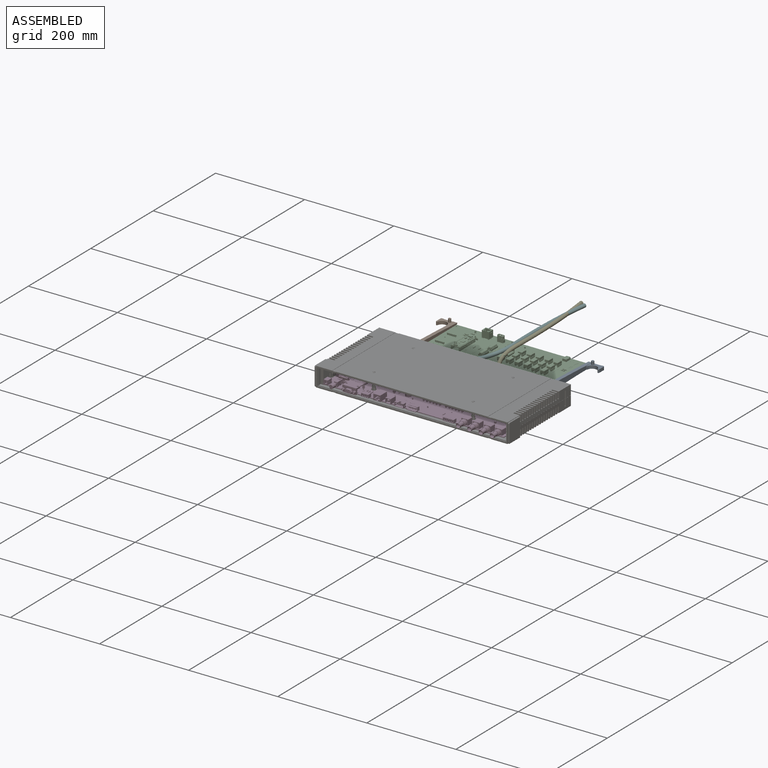
[diagram: assembled view]
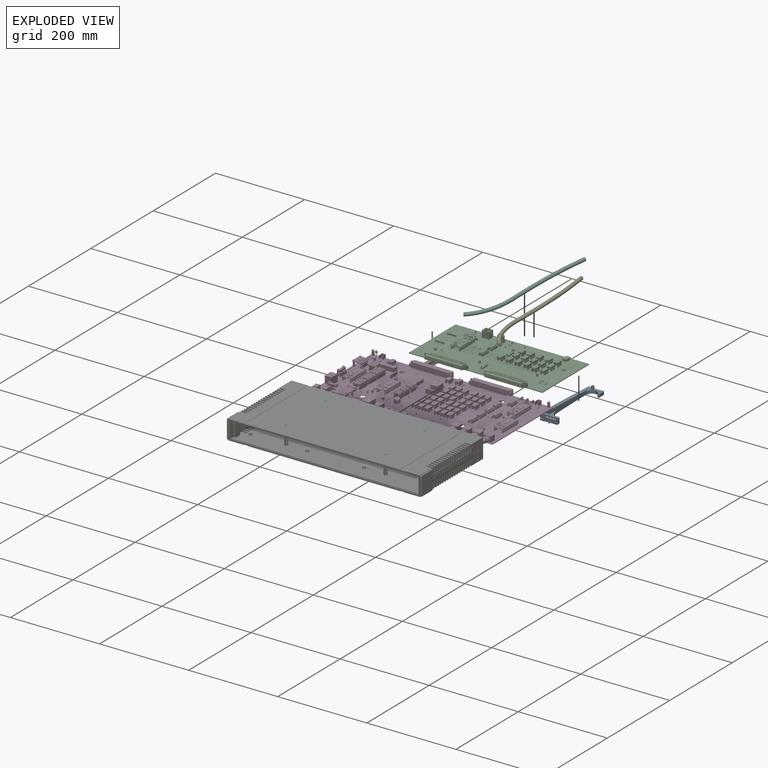
[diagram: exploded view]
GUIDED TOUR — FREECAD ASSEMBLY "InterconnectIO_Box_connector_511-1000"

This assembly has 7 components, labeled P0..P6 below (a component is one placed body or linked part; the same part can appear more than once), held together by 0 modeled joints plus 11 derived contact edges. A joint is a constraint between two components; its type names the relative motion it leaves free:
  CONTACT — a derived adjacency edge — the two components touch in the source model (clearance under 2% of the assembly's diagonal); it is measured from the geometry, not a modeled constraint.
Axis/direction vectors are unit vectors and 'through' points are millimeter coordinates, both in the assembly's world frame.

MATES
  1. CONTACT "contact_0_2": P0 <-> P2, contact direction (0.000, 0.000, 1.000) through (364.03, -15.01, -3.80) mm (derived from contact, not a modeled constraint)
  2. CONTACT "contact_0_3": P0 <-> P3, contact direction (0.000, -1.000, 0.000) through (385.89, -25.50, -4.22) mm (derived from contact, not a modeled constraint)
  3. CONTACT "contact_0_6": P0 <-> P6, contact direction (0.000, -1.000, 0.000) through (385.93, -18.39, -9.70) mm (derived from contact, not a modeled constraint)
  4. CONTACT "contact_1_2": P1 <-> P2, contact direction (0.000, 0.000, 1.000) through (71.92, 89.48, 1.33) mm (derived from contact, not a modeled constraint)
  5. CONTACT "contact_1_3": P1 <-> P3, contact direction (0.000, -1.000, 0.000) through (44.18, -25.83, -7.34) mm (derived from contact, not a modeled constraint)
  6. CONTACT "contact_1_6": P1 <-> P6, contact direction (0.000, -1.000, 0.000) through (44.17, -18.49, -9.95) mm (derived from contact, not a modeled constraint)
  7. CONTACT "contact_2_3": P2 <-> P3, contact direction (0.000, -1.000, 0.000) through (276.30, -21.81, 3.25) mm (derived from contact, not a modeled constraint)
  8. CONTACT "contact_2_4": P2 <-> P4, contact direction (0.000, 0.000, 1.000) through (225.64, 55.93, -1.65) mm (derived from contact, not a modeled constraint)
  9. CONTACT "contact_2_5": P2 <-> P5, contact direction (0.000, 0.000, 1.000) through (181.28, 12.76, -2.87) mm (derived from contact, not a modeled constraint)
  10. CONTACT "contact_3_6": P3 <-> P6, contact direction (0.000, 0.000, 1.000) through (405.74, -55.59, -3.91) mm (derived from contact, not a modeled constraint)
  11. CONTACT "contact_4_5": P4 <-> P5, contact direction (-1.000, 0.000, 0.000) through (212.88, 217.41, 3.88) mm (derived from contact, not a modeled constraint)

ASSEMBLY ORDER
  1. P3 — the base component [order heuristic]
  2. P6 — core [order heuristic]
  3. P5 [order verified]
  4. P2 [order verified]
  5. P4 [order verified]
  6. P1 [order verified]
  7. P0 [order verified]
(P4 verified with a relaxed clearance tolerance: the source model stores slight part interference there.)
Order-tag legend:
  [order verified] — this step's position reverses a verified removal order: the component was checked to insert without passing through the ones already placed.
  [order heuristic] — the first 2 components form the assembly's core: parts whose collision-free extraction could not be verified, listed in mate-graph order.

Of the 7 components, 4 carry a construction recipe — the FreeCAD feature program (sketches with constraints, then the solid features that consume them) that regenerates the part from scratch, quoted from this document or from the linked companion document it references; the rest are supplied as boundary geometry only. The tour below walks the components in assembly order: each is shown spotlighted twice — in the assembled view, then in the exploded view, where a leader line traces a displaced component back to its assembled socket (components that stay in place when exploded have no leader line; saturated green if recipe-attached, orange if geometry-only; every other component desaturated gray) — followed by its recipe or geometry summary and the mates that hold it.
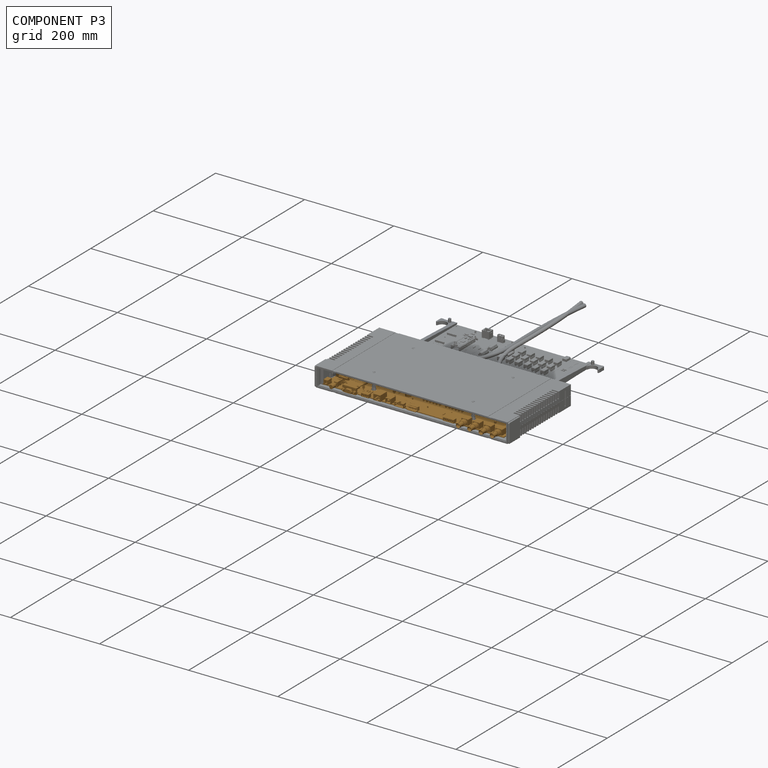
[diagram: component P3 — assembled]
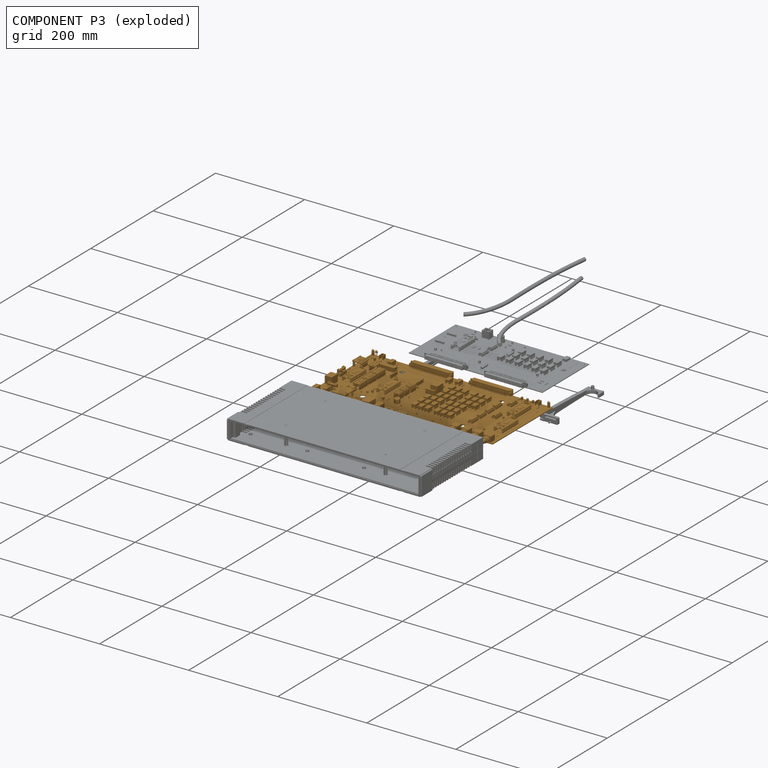
[diagram: component P3 — exploded]
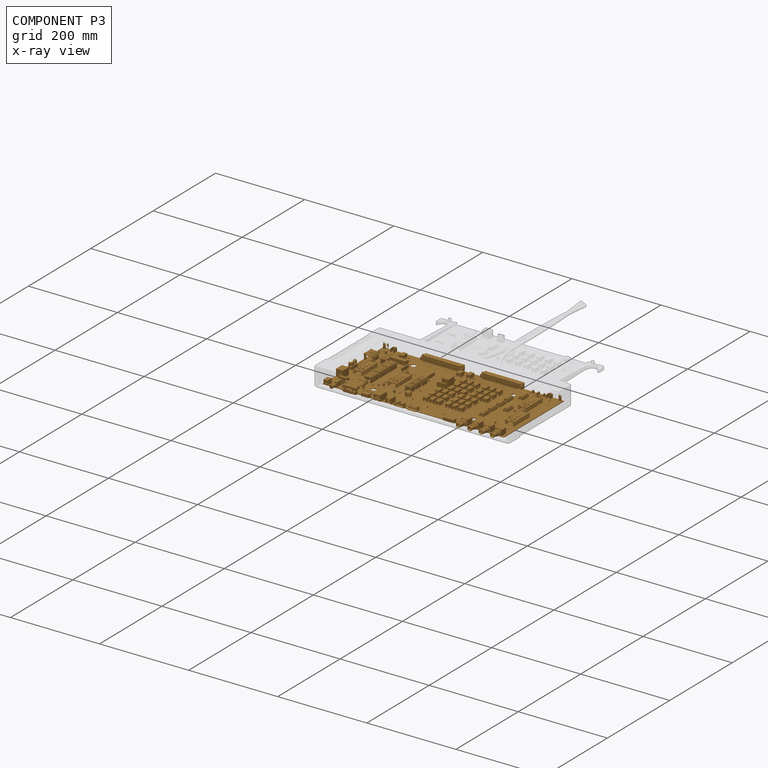
[diagram: component P3 — x-ray view]
COMPONENT P3 — geometry summary ("InterconnectIO"; no construction recipe available for this part):
  bounding box: 406.4 x 221.1 x 22.9 mm
  tessellated surface: 597,776 triangles
  volume: 244619 mm^3 (12% of its bounding box)
Held by: resting contact with P0 (derived edge); resting contact with P1 (derived edge); resting contact with P2 (derived edge); resting contact with P6 (derived edge).
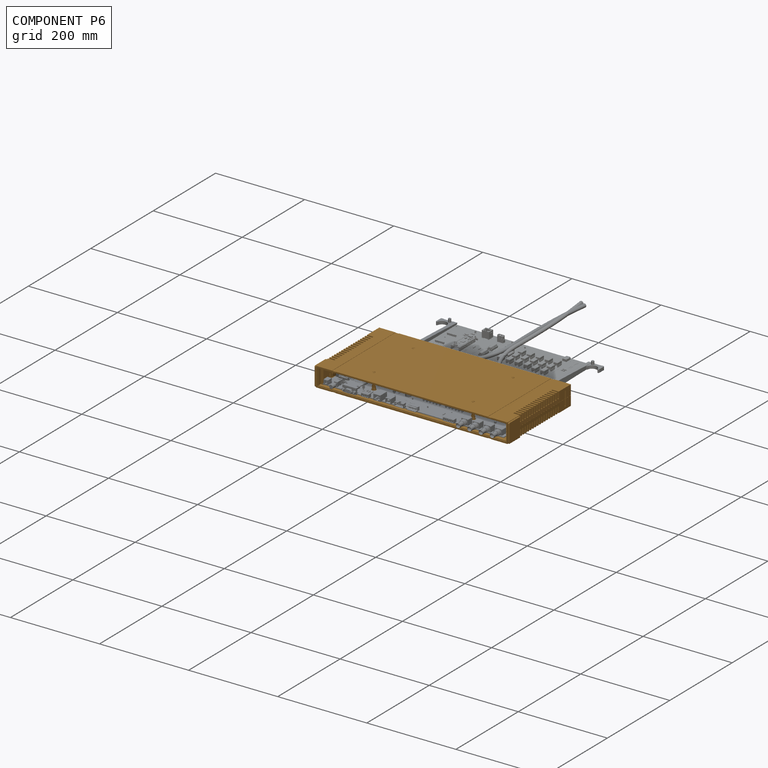
[diagram: component P6 — assembled]
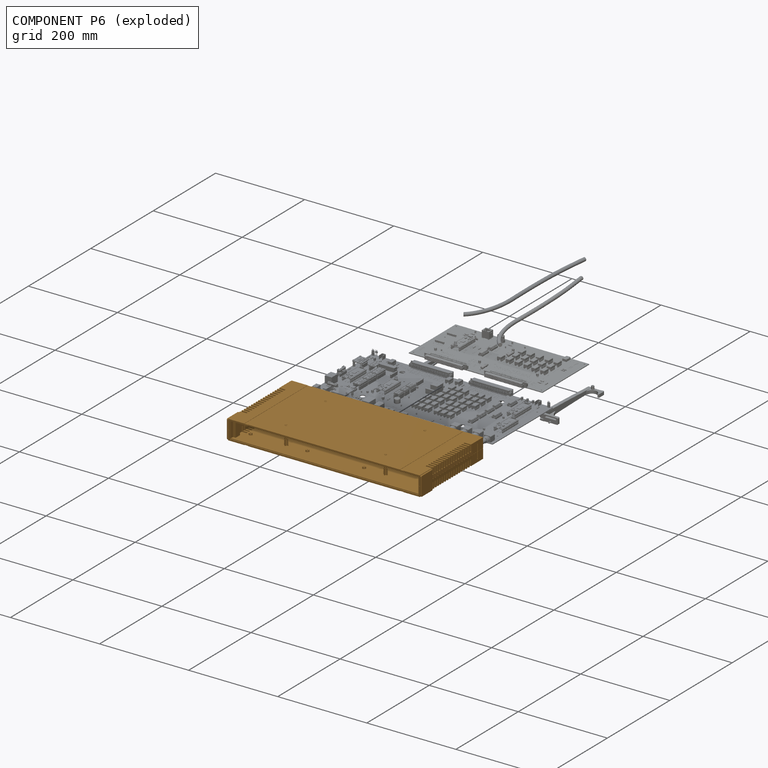
[diagram: component P6 — exploded]
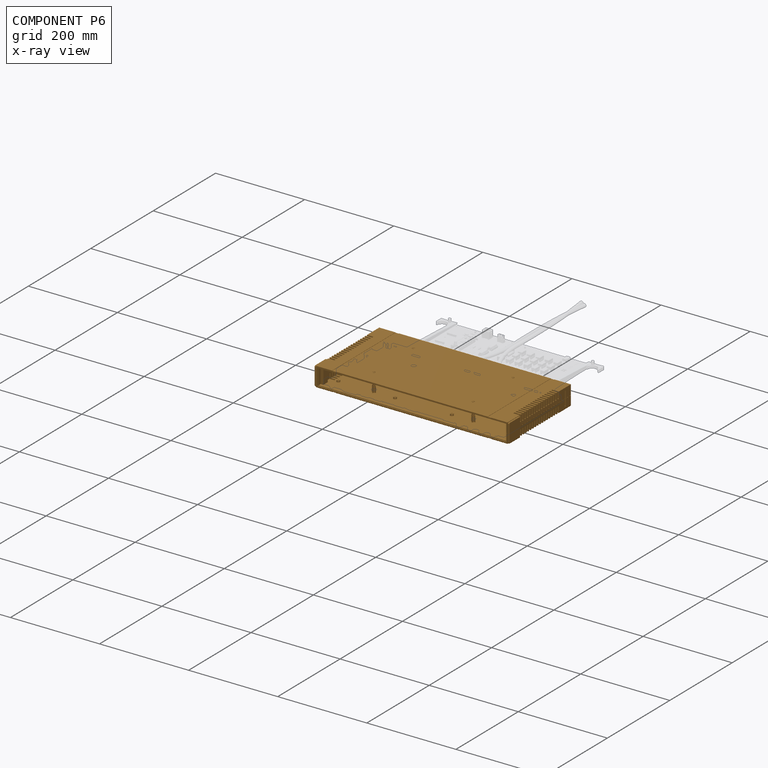
[diagram: component P6 — x-ray view]
COMPONENT P6 — geometry summary ("PRM-14460 (DESKTOP)"; no construction recipe available for this part):
  bounding box: 437.1 x 203.2 x 43.7 mm
  tessellated surface: 19,064 triangles
  volume: 617798 mm^3 (16% of its bounding box)
  symmetry: 2-fold rotationally symmetric about the x axis; 2-fold rotationally symmetric about the y axis; 2-fold rotationally symmetric about the z axis; mirror-symmetric across its x mid-plane, y mid-plane, z mid-plane
Held by: resting contact with P0 (derived edge); resting contact with P1 (derived edge); resting contact with P3 (derived edge).
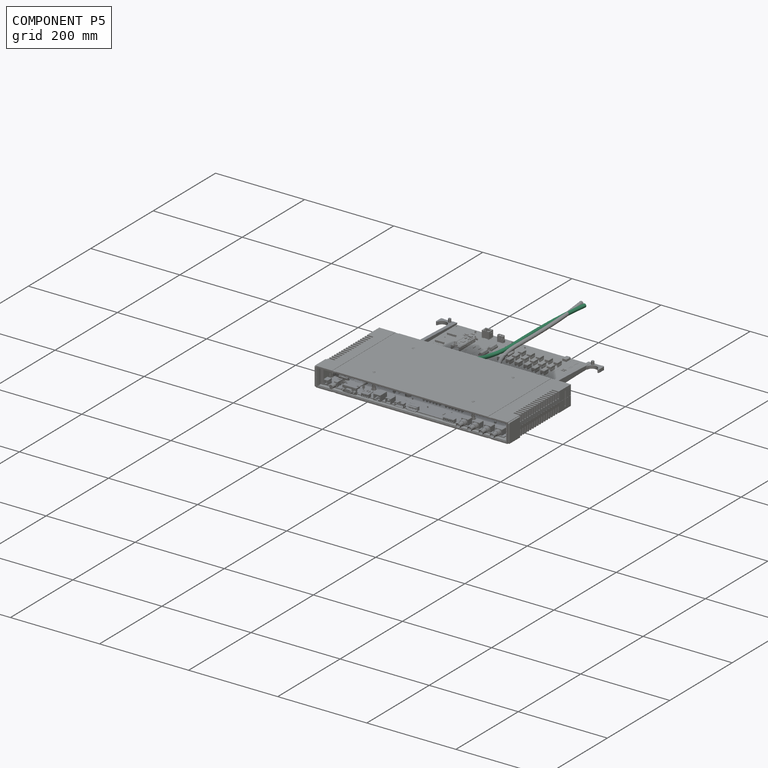
[diagram: component P5 — assembled]
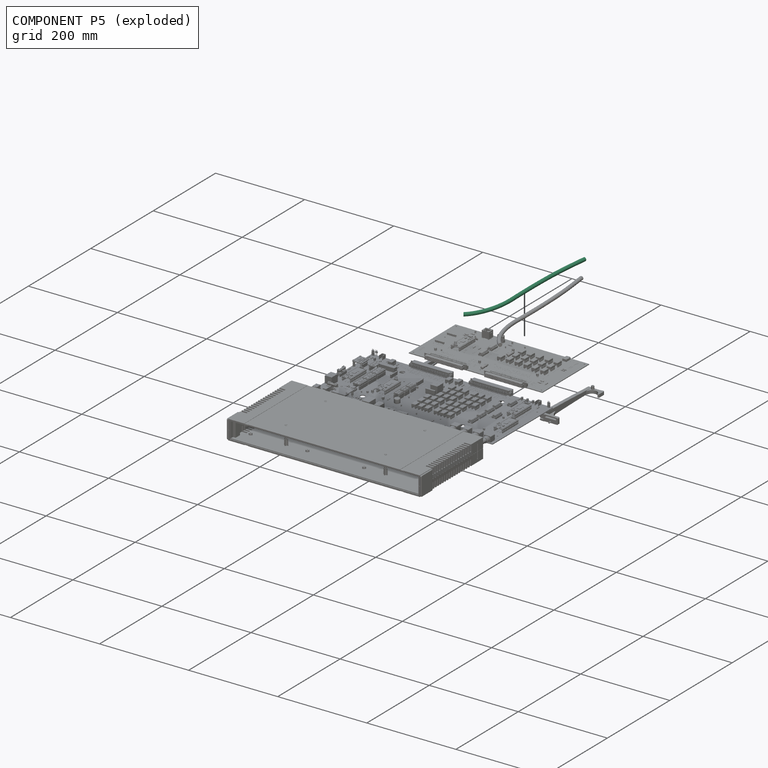
[diagram: component P5 — exploded]
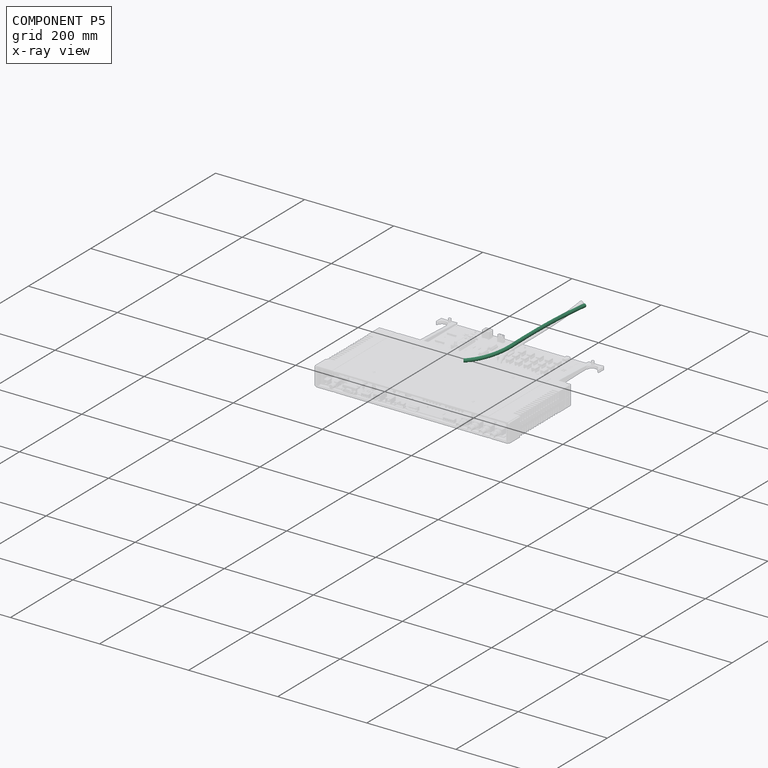
[diagram: component P5 — x-ray view]
COMPONENT P5 — recipe-attached ("Harness001", modeled in this document).
Held by: resting contact with P2 (derived edge); resting contact with P4 (derived edge).
Construction recipe (the document's own serialized feature program — sketch geometry with constraints, then the solid features built on it; lengths are millimeters unless a unit is written):

FEATURE [Sketcher::SketchObject] Sketch029
  ArcFitTolerance = 1e-06
  AttachmentSupport = -> [XZ_Plane132]
  FullyConstrained = false
  MakeInternals = false
  MapMode = 5
  Placement = pos=(0,0,0) rot=(1,0,0;1.5708rad)
  sketch-geometry (16):
    g0-g3: Circle [constr] x4 (B-spline internal-alignment scaffolding for g4; pole/knot coordinates omitted)
    g4: BSplineCurve PolesCount=4 KnotsCount=2 Degree=3 IsPeriodic=0
    g5: GeomPoint [constr] X=0 Y=0 Z=0
    g6: GeomPoint [constr] X=35.7127 Y=101.675 Z=0
    g7-g11: Circle [constr] x5 (B-spline internal-alignment scaffolding for g12; pole/knot coordinates omitted)
    g12: BSplineCurve PolesCount=5 KnotsCount=3 Degree=3 IsPeriodic=0
    g13: GeomPoint [constr] X=0 Y=0 Z=0
    g14: GeomPoint [constr] X=-6.14883 Y=-196.312 Z=0
    g15: GeomPoint [constr] X=-9.14809 Y=-222.641 Z=0
  constraints (16):
    c: Weight(g0) = 1
    c: Equal(g0,g1)
    c: Equal(g0,g2)
    c: Equal(g0,g3)
    c: InternalAlignment(g0-g3 -> g4) x4
    c: InternalAlignment(g5,g4)
    c: InternalAlignment(g6,g4)
    c: Coincident(g0,g-1)
    c: PointOnObject(g1,g-2)
    c: Coincident(g3,g2)
    c: Weight(g7) = 1
    c: Equal(g7, g8-g11) x4
    c: InternalAlignment(g7-g11 -> g12) x5
    c: InternalAlignment(g13,g12)
    c: InternalAlignment(g14,g12)
    c: InternalAlignment(g15,g12)
FEATURE [Sketcher::SketchObject] Sketch030
  ArcFitTolerance = 1e-06
  AttachmentSupport = -> [XY_Plane131]
  FullyConstrained = false
  MakeInternals = false
  MapMode = 5
  sketch-geometry (1):
    g0: Circle CenterX=0 CenterY=0 CenterZ=0 NormalX=0 NormalY=0 NormalZ=1 AngleXU=0 Radius=4
  constraints (1):
    c: Diameter(g0) = 8
FEATURE [PartDesign::AdditivePipe] AdditivePipe001
  AuxilleryCurvelinear = true
  AuxillerySpineTangent = false
  Binormal = (0,0,0)
  Mode = 0
  Profile = -> Sketch030
  Spine = -> Sketch029
  SpineTangent = false
  Suppressed = false
  Transformation = 0
  Transition = 0
FEATURE [PartDesign::Body] Body015  label="Harness001"
  AllowCompound = false
  Group = -> [Sketch030,Sketch029,AdditivePipe001]
  Origin = -> Origin131
  Placement = pos=(209.228,106.572,2.164) rot=(0,-0.707107,0.707107;3.14159rad)
  Tip = -> AdditivePipe001
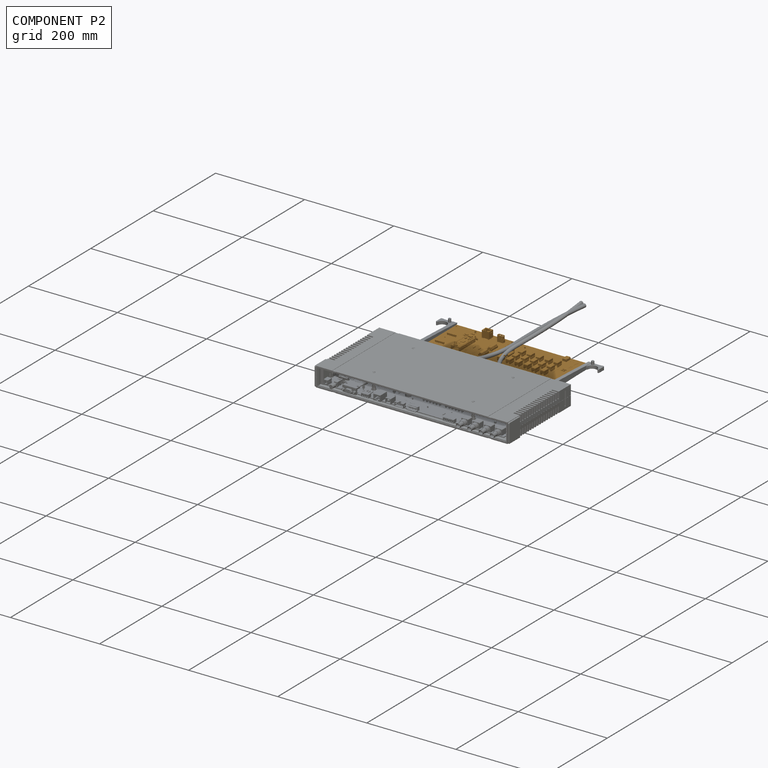
[diagram: component P2 — assembled]
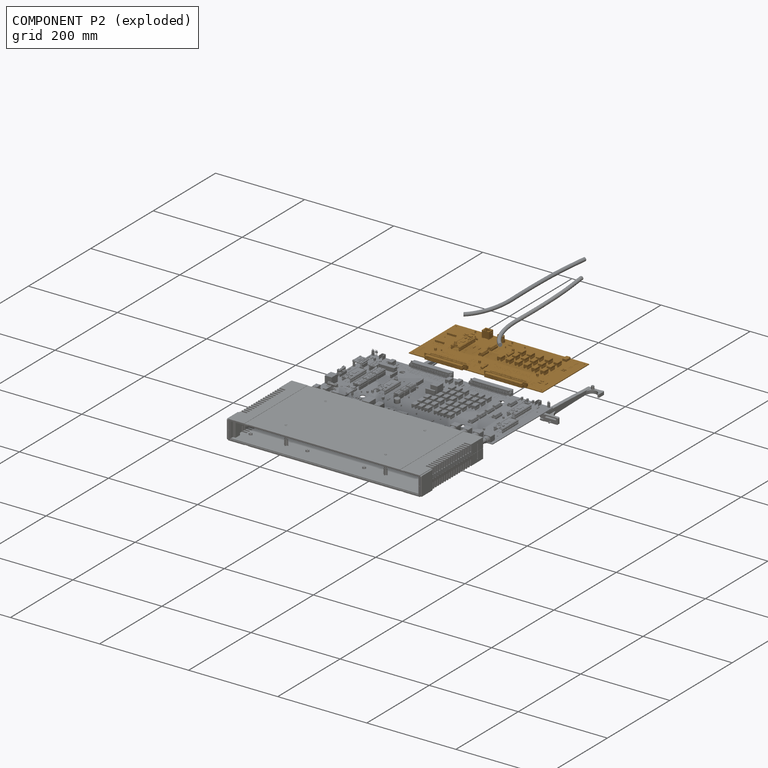
[diagram: component P2 — exploded]
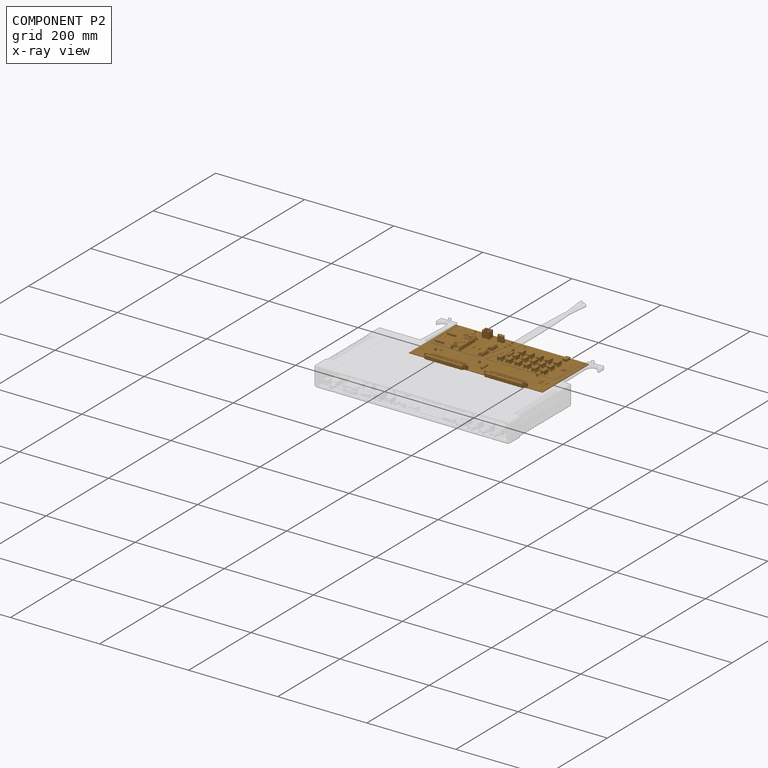
[diagram: component P2 — x-ray view]
COMPONENT P2 — geometry summary ("selftest_bd"; no construction recipe available for this part):
  bounding box: 300.0 x 157.6 x 21.9 mm
  tessellated surface: 243,138 triangles
  volume: 107416 mm^3 (10% of its bounding box)
Held by: resting contact with P0 (derived edge); resting contact with P1 (derived edge); resting contact with P3 (derived edge); resting contact with P4 (derived edge); resting contact with P5 (derived edge).
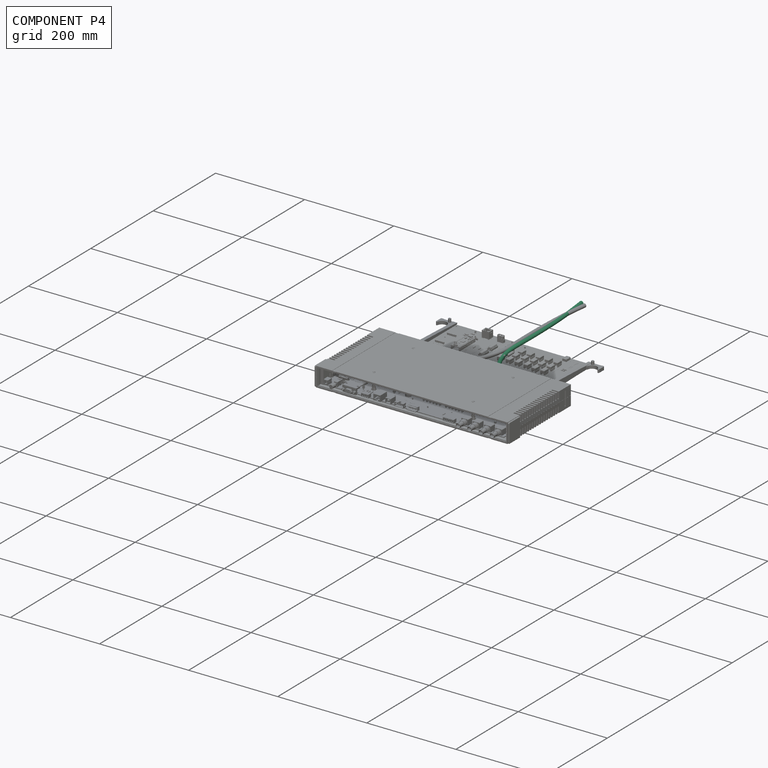
[diagram: component P4 — assembled]
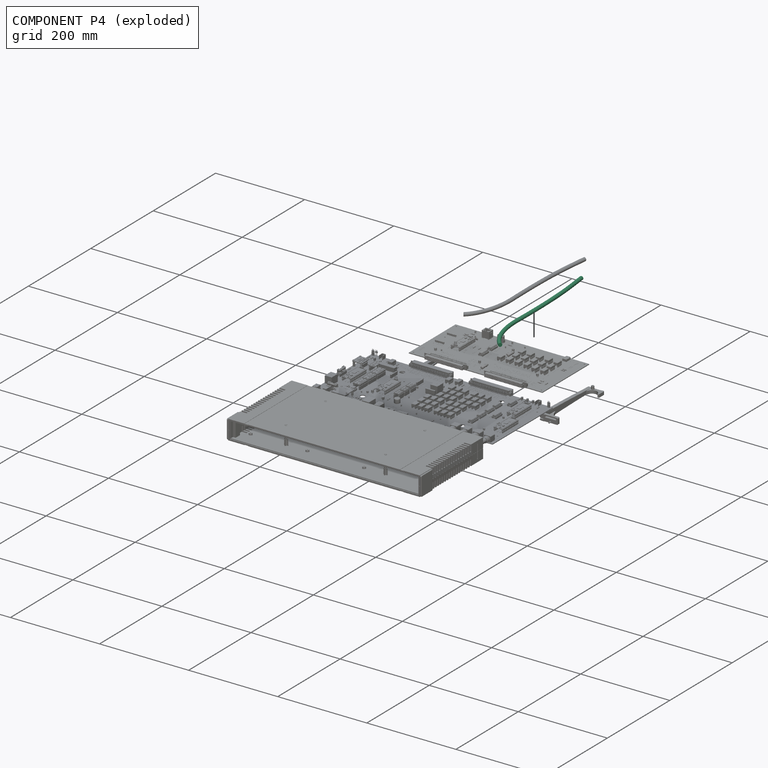
[diagram: component P4 — exploded]
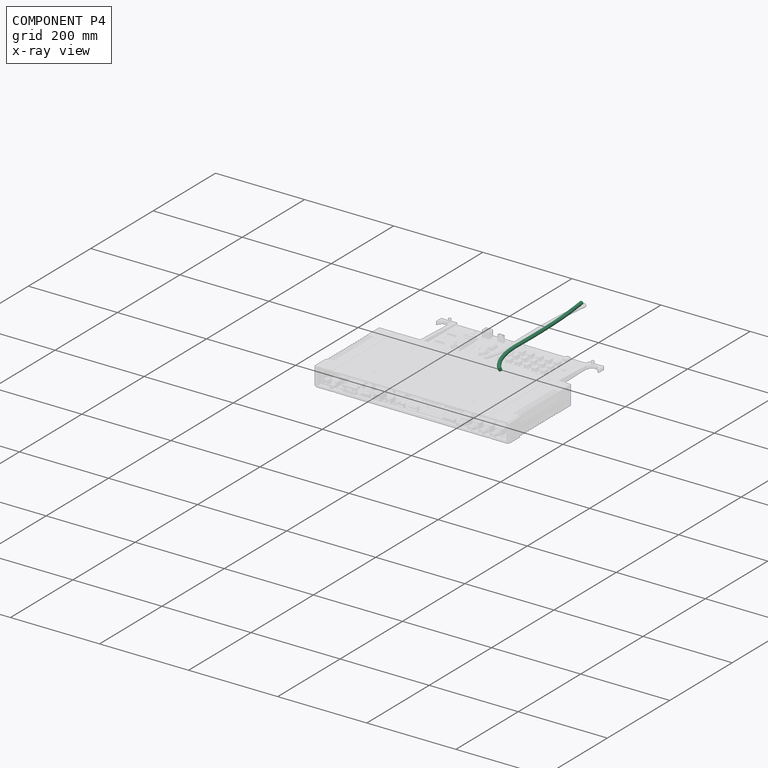
[diagram: component P4 — x-ray view]
COMPONENT P4 — recipe-attached ("Harness", modeled in this document).
Held by: resting contact with P2 (derived edge); resting contact with P5 (derived edge).
Construction recipe (the document's own serialized feature program — sketch geometry with constraints, then the solid features built on it; lengths are millimeters unless a unit is written):

FEATURE [Sketcher::SketchObject] Sketch028
  ArcFitTolerance = 1e-06
  AttachmentSupport = -> [XY_Plane130]
  FullyConstrained = false
  MakeInternals = false
  MapMode = 5
  sketch-geometry (1):
    g0: Circle CenterX=0 CenterY=0 CenterZ=0 NormalX=0 NormalY=0 NormalZ=1 AngleXU=0 Radius=4
  constraints (1):
    c: Diameter(g0) = 8
FEATURE [Sketcher::SketchObject] Sketch001
  ArcFitTolerance = 1e-06
  AttachmentSupport = -> [XZ_Plane131]
  FullyConstrained = false
  MakeInternals = false
  MapMode = 5
  Placement = pos=(0,0,0) rot=(1,0,0;1.5708rad)
  sketch-geometry (16):
    g0-g3: Circle [constr] x4 (B-spline internal-alignment scaffolding for g4; pole/knot coordinates omitted)
    g4: BSplineCurve PolesCount=4 KnotsCount=2 Degree=3 IsPeriodic=0
    g5: GeomPoint [constr] X=0 Y=0 Z=0
    g6: GeomPoint [constr] X=35.7127 Y=101.675 Z=0
    g7-g11: Circle [constr] x5 (B-spline internal-alignment scaffolding for g12; pole/knot coordinates omitted)
    g12: BSplineCurve PolesCount=5 KnotsCount=3 Degree=3 IsPeriodic=0
    g13: GeomPoint [constr] X=0 Y=0 Z=0
    g14: GeomPoint [constr] X=-6.14883 Y=-196.312 Z=0
    g15: GeomPoint [constr] X=-9.14809 Y=-222.641 Z=0
  constraints (16):
    c: Weight(g0) = 1
    c: Equal(g0,g1)
    c: Equal(g0,g2)
    c: Equal(g0,g3)
    c: InternalAlignment(g0-g3 -> g4) x4
    c: InternalAlignment(g5,g4)
    c: InternalAlignment(g6,g4)
    c: Coincident(g0,g-1)
    c: PointOnObject(g1,g-2)
    c: Coincident(g3,g2)
    c: Weight(g7) = 1
    c: Equal(g7, g8-g11) x4
    c: InternalAlignment(g7-g11 -> g12) x5
    c: InternalAlignment(g13,g12)
    c: InternalAlignment(g14,g12)
    c: InternalAlignment(g15,g12)
FEATURE [PartDesign::AdditivePipe] AdditivePipe
  AuxilleryCurvelinear = true
  AuxillerySpineTangent = false
  Binormal = (0,0,0)
  Mode = 0
  Profile = -> Sketch028
  Spine = -> Sketch001
  SpineTangent = false
  Suppressed = false
  Transformation = 0
  Transition = 0
FEATURE [PartDesign::Body] Body014  label="Harness"
  AllowCompound = false
  Group = -> [Sketch028,Sketch001,AdditivePipe]
  Origin = -> Origin130
  Placement = pos=(216.343,112.196,2.164) rot=(1,0,0;1.5708rad)
  Tip = -> AdditivePipe
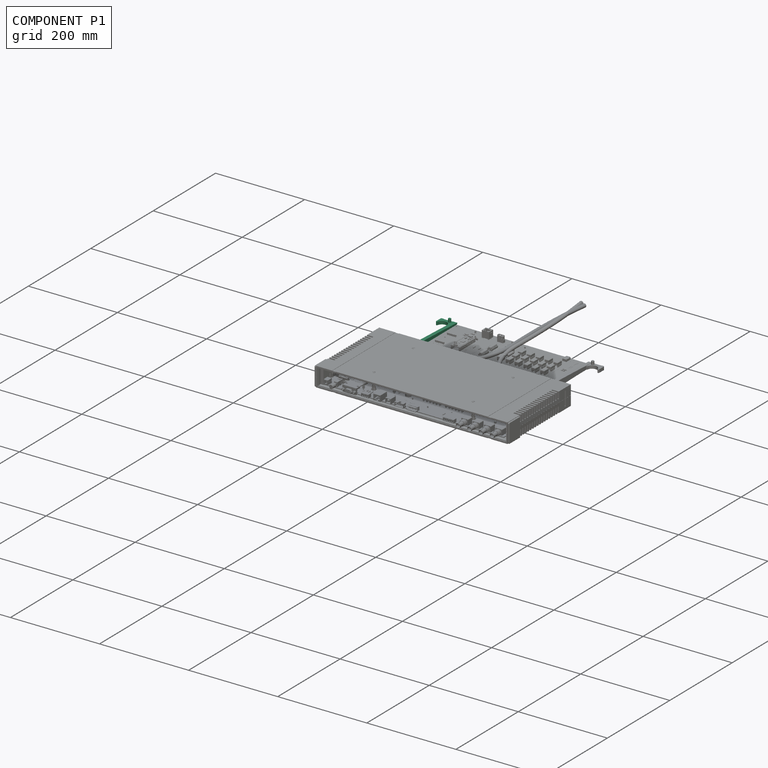
[diagram: component P1 — assembled]
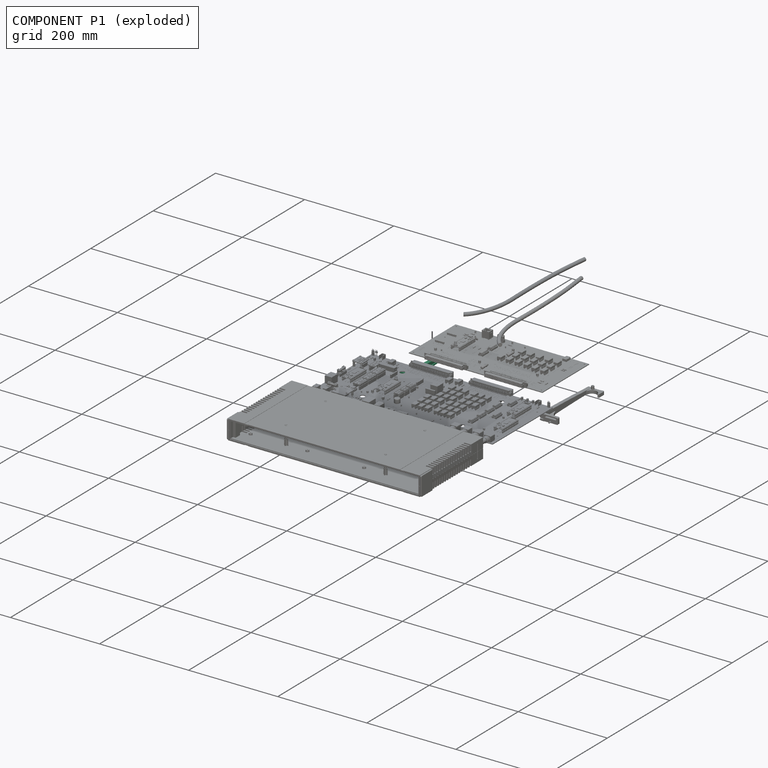
[diagram: component P1 — exploded]
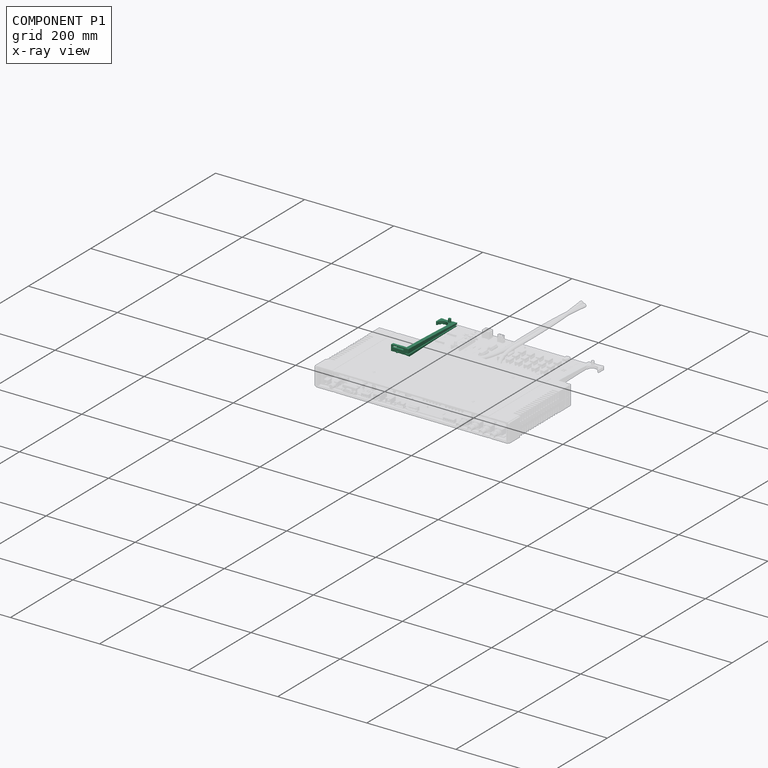
[diagram: component P1 — x-ray view]
COMPONENT P1 — recipe-attached ("rail_right", modeled in this document).
Held by: resting contact with P2 (derived edge); resting contact with P3 (derived edge); resting contact with P6 (derived edge).
Construction recipe (the document's own serialized feature program — sketch geometry with constraints, then the solid features built on it; lengths are millimeters unless a unit is written):

FEATURE [Sketcher::SketchObject] Sketch021
  ArcFitTolerance = 0
  AttachmentOffset = pos=(0,0,3) rot=(0,0,1;0rad)
  AttachmentSupport = -> [XY_Plane125]
  FullyConstrained = true
  MakeInternals = false
  MapMode = 5
  Placement = pos=(0,0,3) rot=(0,0,1;0rad)
  sketch-geometry (4):
    g0: LineSegment StartX=-2.36 StartY=2.5 StartZ=0 EndX=2.36 EndY=2.5 EndZ=0
    g1: LineSegment StartX=2.36 StartY=2.5 StartZ=0 EndX=2.36 EndY=156 EndZ=0
    g2: LineSegment StartX=2.36 StartY=156 StartZ=0 EndX=-2.36 EndY=156 EndZ=0
    g3: LineSegment StartX=-2.36 StartY=156 StartZ=0 EndX=-2.36 EndY=2.5 EndZ=0
  constraints (12):
    c: Coincident(g0,g1)
    c: Coincident(g1,g2)
    c: Coincident(g2,g3)
    c: Coincident(g3,g0)
    c: Horizontal(g0)
    c: Horizontal(g2)
    c: Vertical(g1)
    c: Vertical(g3)
    c: DistanceX(g2,g2) = 4.72
    c: DistanceY(g0,g-1) = -2.5
    c: DistanceX(g0,g-1) = 2.36
    c: DistanceY(g1,g1) = 153.5
FEATURE [Sketcher::SketchObject] Sketch022
  ArcFitTolerance = 0
  AttachmentSupport = -> [XY_Plane125]
  FullyConstrained = true
  MakeInternals = false
  MapMode = 5
  sketch-geometry (8):
    g0: LineSegment StartX=-1 StartY=0 StartZ=0 EndX=-1 EndY=153 EndZ=0
    g1: ArcOfCircle CenterX=-7.01053 CenterY=152.083 CenterZ=0 NormalX=0 NormalY=0 NormalZ=1 AngleXU=0 Radius=6.08 StartAngle=0.151318 EndAngle=0.699927
    g2: LineSegment StartX=-2.36 StartY=156 StartZ=0 EndX=-2.86 EndY=156 EndZ=0
    g3: ArcOfCircle CenterX=-3459.01 CenterY=157.297 CenterZ=0 NormalX=0 NormalY=0 NormalZ=1 AngleXU=0 Radius=3456.16 StartAngle=6.24055 EndAngle=6.28281
    g4: LineSegment StartX=-4 StartY=0 StartZ=0 EndX=-4 EndY=2.5 EndZ=0
    g5: LineSegment StartX=-4 StartY=2.5 StartZ=0 EndX=-6 EndY=2.5 EndZ=0
    g6: LineSegment StartX=-4 StartY=0 StartZ=0 EndX=-1 EndY=0 EndZ=0
    g7: LineSegment StartX=-6 StartY=10 StartZ=0 EndX=-6 EndY=2.5 EndZ=0
  constraints (27):
    c: Vertical(g0)
    c: Coincident(g1,g0)
    c: Coincident(g2,g1)
    c: Horizontal(g2)
    c: Coincident(g3,g2)
    c: DistanceX(g2,g2) = 0.5
    c: Diameter(g3) = 6912.31
    c: PointOnObject(g6,g-1)
    c: Vertical(g4)
    c: Coincident(g5,g4)
    c: Horizontal(g5)
    c: Coincident(g6,g4)
    c: Coincident(g7,g3)
    c: Coincident(g7,g5)
    c: DistanceX(g6,g6) = 3
    c: Vertical(g7)
    c: DistanceX(g5,g5) = 2
    c: DistanceY(g7,g7) = 7.5
    c: DistanceY(g4,g4) = 2.5
    c: DistanceY(g4,g-1) = 0
    c: DistanceY(g3,g2) = 146
    c: DistanceY(g0,g0) = 153
    c: DistanceX(g0,g-1) = 1
    c: DistanceX(g6,g-1) = 1
    c: DistanceY(g6,g0) = 0
    c: Radius(g1) = 6.08
    c: DistanceX(g1,g0) = 1.36
FEATURE [PartDesign::Pad] Pad008
  Direction = (0,0,1)
  Length = 8
  Length2 = 10
  Profile = -> Sketch022
  ReferenceAxis = -> Sketch022 [N_Axis]
  Suppressed = false
  Type = 0
FEATURE [PartDesign::Pad] Pad009
  BaseFeature = -> Pad008
  Direction = (0,0,1)
  Length = 5
  Length2 = 10
  Profile = -> Sketch021
  ReferenceAxis = -> Sketch021 [N_Axis]
  Suppressed = false
  Type = 0
FEATURE [Sketcher::SketchObject] Sketch023
  ArcFitTolerance = 0
  AttachmentSupport = -> [XY_Plane125]
  FullyConstrained = true
  MakeInternals = false
  MapMode = 5
  sketch-geometry (6):
    g0: LineSegment StartX=1 StartY=0 StartZ=0 EndX=10 EndY=0 EndZ=0
    g1: LineSegment StartX=4.36 StartY=156 StartZ=0 EndX=2.36 EndY=156 EndZ=0
    g2: LineSegment StartX=1 StartY=153 StartZ=0 EndX=1 EndY=0 EndZ=0
    g3: ArcOfCircle CenterX=7.01053 CenterY=152.083 CenterZ=0 NormalX=0 NormalY=0 NormalZ=1 AngleXU=0 Radius=6.08 StartAngle=2.44167 EndAngle=2.99027
    g4: LineSegment StartX=10 StartY=0 StartZ=0 EndX=10 EndY=10.5 EndZ=0
    g5: ArcOfCircle CenterX=-6386.74 CenterY=-164.597 CenterZ=0 NormalX=0 NormalY=0 NormalZ=1 AngleXU=0 Radius=6399.14 StartAngle=0.027366 EndAngle=0.050121
  constraints (20):
    c: Coincident(g2,g0)
    c: Horizontal(g0)
    c: Horizontal(g1)
    c: Vertical(g2)
    c: PointOnObject(g0,g-1)
    c: Coincident(g1,g3)
    c: Coincident(g2,g3)
    c: DistanceX(g2,g1) = 1.36
    c: DistanceY(g2,g1) = 3
    c: DistanceX(g1,g1) = 2
    c: DistanceX(g-1,g0) = 1
    c: DistanceY(g2,g2) = 153
    c: Radius(g3) = 6.08
    c: Coincident(g4,g0)
    c: DistanceY(g4,g4) = 10.5
    c: Coincident(g5,g4)
    c: Coincident(g5,g1)
    c: Radius(g5) = 6399.14
    c: DistanceX(g0,g0) = 9
    c: DistanceX(g-1,g4) = 10
FEATURE [PartDesign::Pad] Pad010
  BaseFeature = -> Pad009
  Direction = (0,0,1)
  Length = 8
  Length2 = 10
  Profile = -> Sketch023
  ReferenceAxis = -> Sketch023 [N_Axis]
  Suppressed = false
  Type = 0
FEATURE [PartDesign::Body] Body010  label="rail001"
  AllowCompound = false
  Group = -> [Sketch022,Pad008,Sketch021,Pad009,Sketch023,Pad010]
  Origin = -> Origin125
  Tip = -> Pad010
FEATURE [Sketcher::SketchObject] Sketch025
  ArcFitTolerance = 0
  AttachmentSupport = -> [YZ_Plane126]
  FullyConstrained = false
  MakeInternals = false
  MapMode = 5
  Placement = pos=(0,0,0) rot=(0.57735,0.57735,0.57735;2.0944rad)
  sketch-geometry (5):
    g0: LineSegment StartX=6.01175 StartY=0 StartZ=0 EndX=36.0118 EndY=0 EndZ=0
    g1: LineSegment StartX=36.0118 StartY=0 StartZ=0 EndX=36.0118 EndY=-2 EndZ=0
    g2: LineSegment StartX=8.01175 StartY=-30 StartZ=0 EndX=6.01175 EndY=-30 EndZ=0
    g3: LineSegment StartX=6.01175 StartY=-30 StartZ=0 EndX=6.01175 EndY=0 EndZ=0
    g4: ArcOfCircle CenterX=42.4201 CenterY=-36.4083 CenterZ=0 NormalX=0 NormalY=0 NormalZ=1 AngleXU=0 Radius=35 StartAngle=1.75493 EndAngle=2.95746
  constraints (14):
    c: Coincident(g0,g1)
    c: Coincident(g2,g3)
    c: Coincident(g3,g0)
    c: Horizontal(g0)
    c: Horizontal(g2)
    c: Vertical(g1)
    c: Vertical(g3)
    c: PointOnObject(g0,g-1)
    c: DistanceX(g0,g0) = 30
    c: Coincident(g1,g4)
    c: Coincident(g2,g4)
    c: DistanceY(g1,g1) = 2
    c: DistanceX(g2,g2) = 2
    c: Radius(g4) = 35
FEATURE [PartDesign::Pad] Pad012
  Direction = (1,0,0)
  Length = 6
  Length2 = 10
  Placement = pos=(0,0,0) rot=(0.57735,0.57735,0.57735;2.0944rad)
  Profile = -> Sketch025
  ReferenceAxis = -> Sketch025 [N_Axis]
  Suppressed = false
  Type = 0
FEATURE [PartDesign::Fillet] Fillet002
  Base = -> Pad012 [Edge5]
  BaseFeature = -> Pad012
  Placement = pos=(0,0,0) rot=(0.57735,0.57735,0.57735;2.0944rad)
  Radius = 2
  SupportTransform = false
  Suppressed = false
  UseAllEdges = false
FEATURE [PartDesign::Fillet] Fillet003
  Base = -> Fillet002 [Edge17]
  BaseFeature = -> Fillet002
  Placement = pos=(0,0,0) rot=(0.57735,0.57735,0.57735;2.0944rad)
  Radius = 2
  SupportTransform = false
  Suppressed = false
  UseAllEdges = false
FEATURE [PartDesign::Body] Body011  label="sideforce001"
  AllowCompound = false
  Group = -> [Sketch025,Pad012,Fillet002,Fillet003]
  Origin = -> Origin126
  Placement = pos=(2,0,8) rot=(0,1,0;3.14159rad)
  Tip = -> Fillet003
FEATURE [Sketcher::SketchObject] Sketch026
  ArcFitTolerance = 0
  AttachmentSupport = -> [YZ_Plane127]
  FullyConstrained = false
  MakeInternals = false
  MapMode = 5
  Placement = pos=(0,0,0) rot=(0.57735,-0.57735,-0.57735;2.0944rad)
  sketch-geometry (10):
    g0: LineSegment StartX=-156.003 StartY=8.00103 StartZ=0 EndX=-137.423 EndY=8.00103 EndZ=0
    g1: LineSegment StartX=-137.423 StartY=8.00103 StartZ=0 EndX=-137.423 EndY=8.88796 EndZ=0
    g2: LineSegment StartX=-139.803 StartY=35.8702 StartZ=0 EndX=-153.603 EndY=35.8702 EndZ=0
    g3: ArcOfCircle CenterX=-136.888 CenterY=21.0784 CenterZ=0 NormalX=0 NormalY=0 NormalZ=1 AngleXU=0 Radius=11.34 StartAngle=1.74764 EndAngle=4.59202
    g4: ArcOfCircle CenterX=-153.603 CenterY=33.4702 CenterZ=0 NormalX=0 NormalY=0 NormalZ=1 AngleXU=0 Radius=2.4 StartAngle=1.5708 EndAngle=3.27078
    g5: ArcOfCircle CenterX=-139.803 CenterY=33.4702 CenterZ=0 NormalX=0 NormalY=0 NormalZ=1 AngleXU=0 Radius=2.4 StartAngle=0.566257 EndAngle=1.5708
    g6: ArcOfCircle CenterX=-230.704 CenterY=20.6405 CenterZ=0 NormalX=0 NormalY=0 NormalZ=1 AngleXU=0 Radius=75.763 StartAngle=6.11557 EndAngle=6.44921
    g7: Circle CenterX=-150.473 CenterY=13.3301 CenterZ=0 NormalX=0 NormalY=0 NormalZ=1 AngleXU=0 Radius=3
    g8: ArcOfCircle CenterX=-138.362 CenterY=8.88796 CenterZ=0 NormalX=0 NormalY=0 NormalZ=1 AngleXU=0 Radius=0.939281 StartAngle=0 EndAngle=1.45042
    g9: ArcOfCircle CenterX=-139.174 CenterY=33.8702 CenterZ=0 NormalX=0 NormalY=0 NormalZ=1 AngleXU=0 Radius=1.65446 StartAngle=4.88923 EndAngle=6.84944
  constraints (20):
    c: Coincident(g0,g1)
    c: Horizontal(g0)
    c: Horizontal(g2)
    c: Vertical(g1)
    c: Tangent(g2,g4) = -1.5708
    c: Tangent(g2,g5) = -1.5708
    c: Radius(g4) = 2.4
    c: Radius(g5) = 2.4
    c: DistanceX(g2,g2) = 13.8
    c: DistanceY(g0,g4) = 25.16
    c: DistanceX(g4,g2) = 2.38
    c: Radius(g3) = 11.34
    c: Coincident(g6,g0)
    c: Coincident(g6,g4)
    c: DistanceX(g0,g0) = 18.58
    c: Diameter(g7) = 6
    c: Tangent(g3,g8) = 1.5708
    c: Tangent(g1,g8) = -1.5708
    c: Tangent(g3,g9) = 1.5708
    c: Tangent(g5,g9) = -1.5708
FEATURE [PartDesign::Pad] Pad013
  Direction = (-1,0,0)
  Length = 7
  Length2 = 10
  Placement = pos=(0,0,0) rot=(0.57735,0.57735,0.57735;2.0944rad)
  Profile = -> Sketch026
  ReferenceAxis = -> Sketch026 [N_Axis]
  Suppressed = false
  Type = 0
FEATURE [PartDesign::Body] Body012  label="finger001"
  AllowCompound = false
  Group = -> [Sketch026,Pad013]
  Origin = -> Origin127
  Placement = pos=(4.278,-0.01,-0.012) rot=(0,0,1;0rad)
  Tip = -> Pad013
FEATURE [Sketcher::SketchObject] Sketch027
  ArcFitTolerance = 0
  AttachmentSupport = -> [XZ_Plane129]
  FullyConstrained = true
  MakeInternals = false
  MapMode = 5
  Placement = pos=(0,0,0) rot=(1,0,0;1.5708rad)
  sketch-geometry (4):
    g0: ArcOfCircle CenterX=5.9 CenterY=35 CenterZ=0 NormalX=0 NormalY=0 NormalZ=1 AngleXU=0 Radius=3 StartAngle=4e-16 EndAngle=3.14159
    g1: ArcOfCircle CenterX=5.9 CenterY=13 CenterZ=0 NormalX=0 NormalY=0 NormalZ=1 AngleXU=0 Radius=3 StartAngle=3.14159 EndAngle=6.28319
    g2: LineSegment StartX=2.9 StartY=35 StartZ=0 EndX=2.9 EndY=13 EndZ=0
    g3: LineSegment StartX=8.9 StartY=13 StartZ=0 EndX=8.9 EndY=35 EndZ=0
  constraints (10):
    c: Tangent(g0,g2) = -1.5708
    c: Tangent(g2,g1) = -1.5708
    c: Tangent(g1,g3) = -1.5708
    c: Tangent(g3,g0) = -1.5708
    c: Equal(g0,g1)
    c: Vertical(g2)
    c: DistanceY(g1,g0) = 22
    c: DistanceX(g1,g1) = 6
    c: DistanceY(g-1,g1) = 13
    c: DistanceX(g-1,g1) = 5.9
FEATURE [PartDesign::Pad] Pad014
  Direction = (0,-1,2e-16)
  Length = 2
  Length2 = 10
  Placement = pos=(0,0,0) rot=(1,0,0;1.5708rad)
  Profile = -> Sketch027
  ReferenceAxis = -> Sketch027 [N_Axis]
  Suppressed = false
  Type = 0
FEATURE [PartDesign::Body] Body013  label="slotscrew001"
  AllowCompound = false
  Group = -> [Sketch027,Pad014]
  Origin = -> Origin128
  Placement = pos=(-0.013,-4.05,-39.977) rot=(0,0,1;0rad)
  Tip = -> Pad014
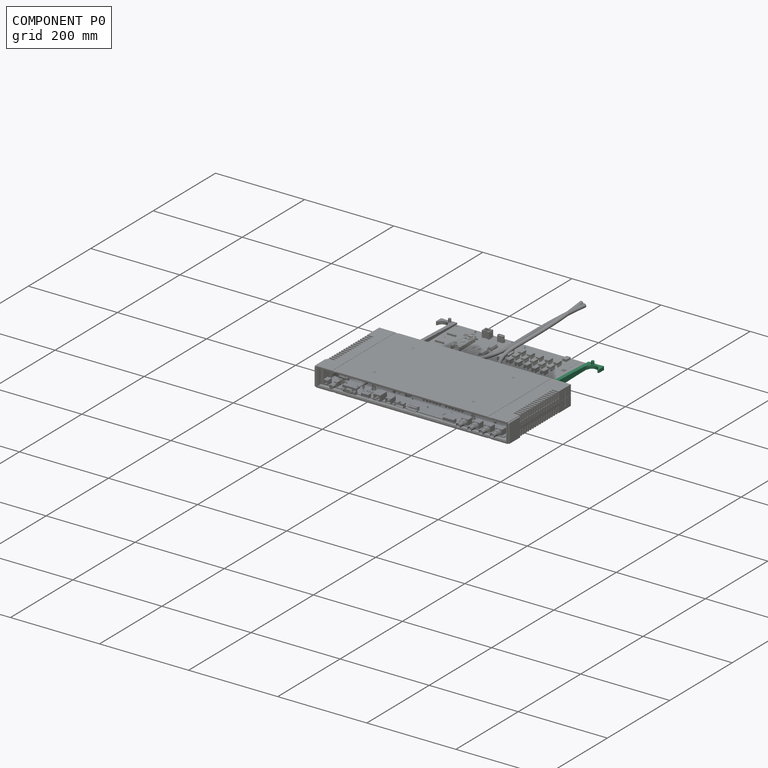
[diagram: component P0 — assembled]
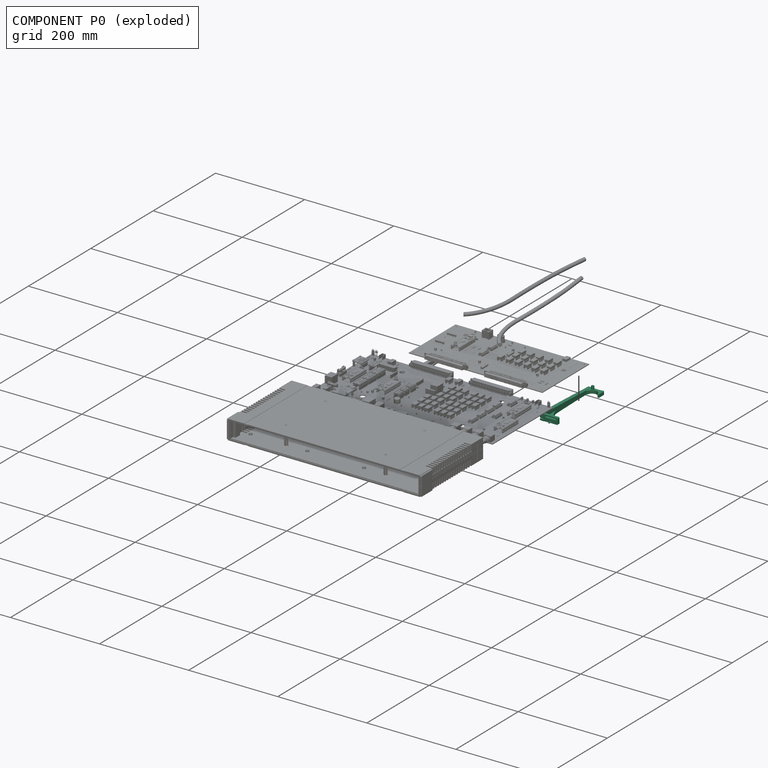
[diagram: component P0 — exploded]
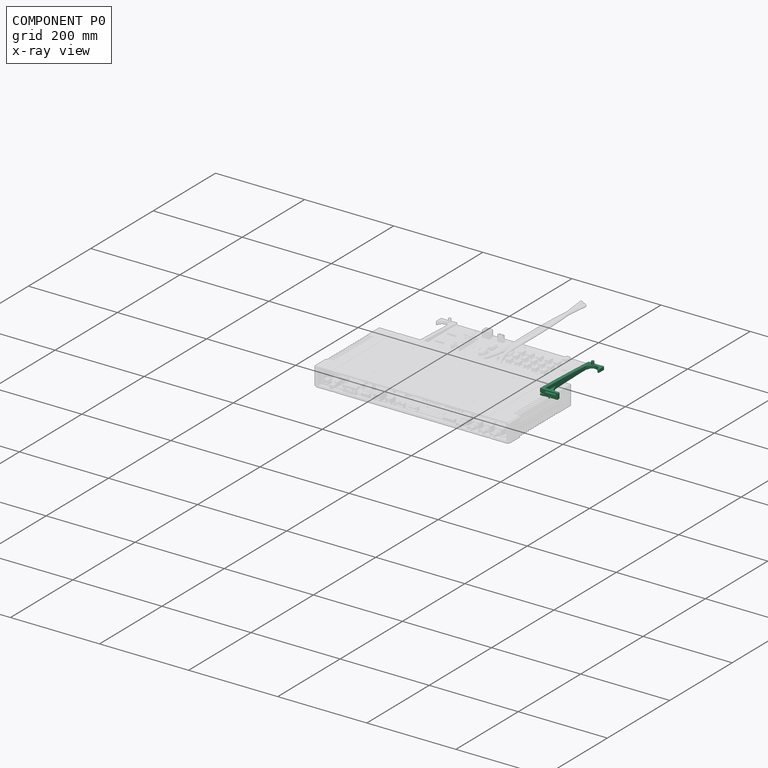
[diagram: component P0 — x-ray view]
COMPONENT P0 — recipe-attached ("rail_left", modeled in this document).
Held by: resting contact with P2 (derived edge); resting contact with P3 (derived edge); resting contact with P6 (derived edge).
Construction recipe (the document's own serialized feature program — sketch geometry with constraints, then the solid features built on it; lengths are millimeters unless a unit is written):

FEATURE [PartDesign::Body] Body  label="slot"
  AllowCompound = false
  Origin = -> Origin119
  Placement = pos=(0,6.008,0) rot=(0,0,1;0rad)
FEATURE [Sketcher::SketchObject] Sketch
  ArcFitTolerance = 0
  AttachmentSupport = -> [XY_Plane120]
  FullyConstrained = true
  MakeInternals = false
  MapMode = 5
  sketch-geometry (4):
    g0: LineSegment StartX=-2.36 StartY=2.5 StartZ=0 EndX=2.36 EndY=2.5 EndZ=0
    g1: LineSegment StartX=2.36 StartY=2.5 StartZ=0 EndX=2.36 EndY=156 EndZ=0
    g2: LineSegment StartX=2.36 StartY=156 StartZ=0 EndX=-2.36 EndY=156 EndZ=0
    g3: LineSegment StartX=-2.36 StartY=156 StartZ=0 EndX=-2.36 EndY=2.5 EndZ=0
  constraints (12):
    c: Coincident(g0,g1)
    c: Coincident(g1,g2)
    c: Coincident(g2,g3)
    c: Coincident(g3,g0)
    c: Horizontal(g0)
    c: Horizontal(g2)
    c: Vertical(g1)
    c: Vertical(g3)
    c: DistanceX(g2,g2) = 4.72
    c: DistanceY(g0,g-1) = -2.5
    c: DistanceX(g0,g-1) = 2.36
    c: DistanceY(g1,g1) = 153.5
FEATURE [Sketcher::SketchObject] Sketch003
  ArcFitTolerance = 0
  AttachmentSupport = -> [XY_Plane120]
  FullyConstrained = true
  MakeInternals = false
  MapMode = 5
  sketch-geometry (8):
    g0: LineSegment StartX=-1 StartY=0 StartZ=0 EndX=-1 EndY=153 EndZ=0
    g1: ArcOfCircle CenterX=-7.01053 CenterY=152.083 CenterZ=0 NormalX=0 NormalY=0 NormalZ=1 AngleXU=0 Radius=6.08 StartAngle=0.151318 EndAngle=0.699927
    g2: LineSegment StartX=-2.36 StartY=156 StartZ=0 EndX=-2.86 EndY=156 EndZ=0
    g3: ArcOfCircle CenterX=-3459.01 CenterY=157.297 CenterZ=0 NormalX=0 NormalY=0 NormalZ=1 AngleXU=0 Radius=3456.16 StartAngle=6.24055 EndAngle=6.28281
    g4: LineSegment StartX=-4 StartY=0 StartZ=0 EndX=-4 EndY=2.5 EndZ=0
    g5: LineSegment StartX=-4 StartY=2.5 StartZ=0 EndX=-6 EndY=2.5 EndZ=0
    g6: LineSegment StartX=-4 StartY=0 StartZ=0 EndX=-1 EndY=0 EndZ=0
    g7: LineSegment StartX=-6 StartY=10 StartZ=0 EndX=-6 EndY=2.5 EndZ=0
  constraints (27):
    c: Vertical(g0)
    c: Coincident(g1,g0)
    c: Coincident(g2,g1)
    c: Horizontal(g2)
    c: Coincident(g3,g2)
    c: DistanceX(g2,g2) = 0.5
    c: Diameter(g3) = 6912.31
    c: PointOnObject(g6,g-1)
    c: Vertical(g4)
    c: Coincident(g5,g4)
    c: Horizontal(g5)
    c: Coincident(g6,g4)
    c: Coincident(g7,g3)
    c: Coincident(g7,g5)
    c: DistanceX(g6,g6) = 3
    c: Vertical(g7)
    c: DistanceX(g5,g5) = 2
    c: DistanceY(g7,g7) = 7.5
    c: DistanceY(g4,g4) = 2.5
    c: DistanceY(g4,g-1) = 0
    c: DistanceY(g3,g2) = 146
    c: DistanceY(g0,g0) = 153
    c: DistanceX(g0,g-1) = 1
    c: DistanceX(g6,g-1) = 1
    c: DistanceY(g6,g0) = 0
    c: Radius(g1) = 6.08
    c: DistanceX(g1,g0) = 1.36
FEATURE [PartDesign::Pad] Pad
  Direction = (0,0,1)
  Length = 8
  Length2 = 10
  Profile = -> Sketch003
  ReferenceAxis = -> Sketch003 [N_Axis]
  Suppressed = false
  Type = 0
FEATURE [PartDesign::Pad] Pad001
  BaseFeature = -> Pad
  Direction = (0,0,1)
  Length = 5
  Length2 = 10
  Profile = -> Sketch
  ReferenceAxis = -> Sketch [N_Axis]
  Suppressed = false
  Type = 0
FEATURE [Sketcher::SketchObject] Sketch011
  ArcFitTolerance = 0
  AttachmentSupport = -> [XY_Plane120]
  FullyConstrained = true
  MakeInternals = false
  MapMode = 5
  sketch-geometry (6):
    g0: LineSegment StartX=1 StartY=0 StartZ=0 EndX=10 EndY=0 EndZ=0
    g1: LineSegment StartX=4.36 StartY=156 StartZ=0 EndX=2.36 EndY=156 EndZ=0
    g2: LineSegment StartX=1 StartY=153 StartZ=0 EndX=1 EndY=0 EndZ=0
    g3: ArcOfCircle CenterX=7.01053 CenterY=152.083 CenterZ=0 NormalX=0 NormalY=0 NormalZ=1 AngleXU=0 Radius=6.08 StartAngle=2.44167 EndAngle=2.99027
    g4: LineSegment StartX=10 StartY=0 StartZ=0 EndX=10 EndY=10.5 EndZ=0
    g5: ArcOfCircle CenterX=-6386.74 CenterY=-164.597 CenterZ=0 NormalX=0 NormalY=0 NormalZ=1 AngleXU=0 Radius=6399.14 StartAngle=0.027366 EndAngle=0.050121
  constraints (20):
    c: Coincident(g2,g0)
    c: Horizontal(g0)
    c: Horizontal(g1)
    c: Vertical(g2)
    c: PointOnObject(g0,g-1)
    c: Coincident(g1,g3)
    c: Coincident(g2,g3)
    c: DistanceX(g2,g1) = 1.36
    c: DistanceY(g2,g1) = 3
    c: DistanceX(g1,g1) = 2
    c: DistanceX(g-1,g0) = 1
    c: DistanceY(g2,g2) = 153
    c: Radius(g3) = 6.08
    c: Coincident(g4,g0)
    c: DistanceY(g4,g4) = 10.5
    c: Coincident(g5,g4)
    c: Coincident(g5,g1)
    c: Radius(g5) = 6399.14
    c: DistanceX(g0,g0) = 9
    c: DistanceX(g-1,g4) = 10
FEATURE [PartDesign::Pad] Pad003
  BaseFeature = -> Pad001
  Direction = (0,0,1)
  Length = 8
  Length2 = 10
  Profile = -> Sketch011
  ReferenceAxis = -> Sketch011 [N_Axis]
  Suppressed = false
  Type = 0
FEATURE [PartDesign::Body] Body003  label="rail"
  AllowCompound = false
  Group = -> [Sketch003,Pad,Sketch,Pad001,Sketch011,Pad003]
  Origin = -> Origin120
  Tip = -> Pad003
FEATURE [Sketcher::SketchObject] Sketch013
  ArcFitTolerance = 0
  AttachmentSupport = -> [YZ_Plane121]
  FullyConstrained = false
  MakeInternals = false
  MapMode = 5
  Placement = pos=(0,0,0) rot=(0.57735,0.57735,0.57735;2.0944rad)
  sketch-geometry (5):
    g0: LineSegment StartX=6.01175 StartY=0 StartZ=0 EndX=36.0118 EndY=0 EndZ=0
    g1: LineSegment StartX=36.0118 StartY=0 StartZ=0 EndX=36.0118 EndY=-2 EndZ=0
    g2: LineSegment StartX=8.01175 StartY=-30 StartZ=0 EndX=6.01175 EndY=-30 EndZ=0
    g3: LineSegment StartX=6.01175 StartY=-30 StartZ=0 EndX=6.01175 EndY=0 EndZ=0
    g4: ArcOfCircle CenterX=42.4201 CenterY=-36.4083 CenterZ=0 NormalX=0 NormalY=0 NormalZ=1 AngleXU=0 Radius=35 StartAngle=1.75493 EndAngle=2.95746
  constraints (14):
    c: Coincident(g0,g1)
    c: Coincident(g2,g3)
    c: Coincident(g3,g0)
    c: Horizontal(g0)
    c: Horizontal(g2)
    c: Vertical(g1)
    c: Vertical(g3)
    c: PointOnObject(g0,g-1)
    c: DistanceX(g0,g0) = 30
    c: Coincident(g1,g4)
    c: Coincident(g2,g4)
    c: DistanceY(g1,g1) = 2
    c: DistanceX(g2,g2) = 2
    c: Radius(g4) = 35
FEATURE [PartDesign::Pad] Pad005
  Direction = (1,0,0)
  Length = 6
  Length2 = 10
  Placement = pos=(0,0,0) rot=(0.57735,0.57735,0.57735;2.0944rad)
  Profile = -> Sketch013
  ReferenceAxis = -> Sketch013 [N_Axis]
  Suppressed = false
  Type = 0
FEATURE [PartDesign::Fillet] Fillet
  Base = -> Pad005 [Edge5]
  BaseFeature = -> Pad005
  Placement = pos=(0,0,0) rot=(0.57735,0.57735,0.57735;2.0944rad)
  Radius = 2
  SupportTransform = false
  Suppressed = false
  UseAllEdges = false
FEATURE [PartDesign::Fillet] Fillet001
  Base = -> Fillet [Edge17]
  BaseFeature = -> Fillet
  Placement = pos=(0,0,0) rot=(0.57735,0.57735,0.57735;2.0944rad)
  Radius = 2
  SupportTransform = false
  Suppressed = false
  UseAllEdges = false
FEATURE [PartDesign::Body] Body004  label="sideforce"
  AllowCompound = false
  Group = -> [Sketch013,Pad005,Fillet,Fillet001]
  Origin = -> Origin121
  Placement = pos=(-4.016,0.057,0) rot=(0,0,1;0rad)
  Tip = -> Fillet001
FEATURE [Sketcher::SketchObject] Sketch019
  ArcFitTolerance = 0
  AttachmentSupport = -> [YZ_Plane122]
  FullyConstrained = false
  MakeInternals = false
  MapMode = 5
  Placement = pos=(0,0,0) rot=(0.57735,-0.57735,-0.57735;2.0944rad)
  sketch-geometry (10):
    g0: LineSegment StartX=-156.003 StartY=8.00103 StartZ=0 EndX=-137.423 EndY=8.00103 EndZ=0
    g1: LineSegment StartX=-137.423 StartY=8.00103 StartZ=0 EndX=-137.423 EndY=8.88796 EndZ=0
    g2: LineSegment StartX=-139.803 StartY=35.8702 StartZ=0 EndX=-153.603 EndY=35.8702 EndZ=0
    g3: ArcOfCircle CenterX=-136.888 CenterY=21.0784 CenterZ=0 NormalX=0 NormalY=0 NormalZ=1 AngleXU=0 Radius=11.34 StartAngle=1.74764 EndAngle=4.59202
    g4: ArcOfCircle CenterX=-153.603 CenterY=33.4702 CenterZ=0 NormalX=0 NormalY=0 NormalZ=1 AngleXU=0 Radius=2.4 StartAngle=1.5708 EndAngle=3.27078
    g5: ArcOfCircle CenterX=-139.803 CenterY=33.4702 CenterZ=0 NormalX=0 NormalY=0 NormalZ=1 AngleXU=0 Radius=2.4 StartAngle=0.566257 EndAngle=1.5708
    g6: ArcOfCircle CenterX=-230.704 CenterY=20.6405 CenterZ=0 NormalX=0 NormalY=0 NormalZ=1 AngleXU=0 Radius=75.763 StartAngle=6.11557 EndAngle=6.44921
    g7: Circle CenterX=-150.473 CenterY=13.3301 CenterZ=0 NormalX=0 NormalY=0 NormalZ=1 AngleXU=0 Radius=3
    g8: ArcOfCircle CenterX=-138.362 CenterY=8.88796 CenterZ=0 NormalX=0 NormalY=0 NormalZ=1 AngleXU=0 Radius=0.939281 StartAngle=0 EndAngle=1.45042
    g9: ArcOfCircle CenterX=-139.174 CenterY=33.8702 CenterZ=0 NormalX=0 NormalY=0 NormalZ=1 AngleXU=0 Radius=1.65446 StartAngle=4.88923 EndAngle=6.84944
  constraints (20):
    c: Coincident(g0,g1)
    c: Horizontal(g0)
    c: Horizontal(g2)
    c: Vertical(g1)
    c: Tangent(g2,g4) = -1.5708
    c: Tangent(g2,g5) = -1.5708
    c: Radius(g4) = 2.4
    c: Radius(g5) = 2.4
    c: DistanceX(g2,g2) = 13.8
    c: DistanceY(g0,g4) = 25.16
    c: DistanceX(g4,g2) = 2.38
    c: Radius(g3) = 11.34
    c: Coincident(g6,g0)
    c: Coincident(g6,g4)
    c: DistanceX(g0,g0) = 18.58
    c: Diameter(g7) = 6
    c: Tangent(g3,g8) = 1.5708
    c: Tangent(g1,g8) = -1.5708
    c: Tangent(g3,g9) = 1.5708
    c: Tangent(g5,g9) = -1.5708
FEATURE [PartDesign::Pad] Pad006
  Direction = (-1,0,0)
  Length = 7
  Length2 = 10
  Placement = pos=(0,0,0) rot=(0.57735,0.57735,0.57735;2.0944rad)
  Profile = -> Sketch019
  ReferenceAxis = -> Sketch019 [N_Axis]
  Suppressed = false
  Type = 0
FEATURE [PartDesign::Body] Body007  label="finger"
  AllowCompound = false
  Group = -> [Sketch019,Pad006]
  Origin = -> Origin122
  Placement = pos=(-2.654,-0.011,8.013) rot=(0,1,0;3.14159rad)
  Tip = -> Pad006
FEATURE [Sketcher::SketchObject] Sketch020
  ArcFitTolerance = 0
  AttachmentSupport = -> [XZ_Plane124]
  FullyConstrained = true
  MakeInternals = false
  MapMode = 5
  Placement = pos=(0,0,0) rot=(1,0,0;1.5708rad)
  sketch-geometry (4):
    g0: ArcOfCircle CenterX=5.9 CenterY=35 CenterZ=0 NormalX=0 NormalY=0 NormalZ=1 AngleXU=0 Radius=3 StartAngle=4e-16 EndAngle=3.14159
    g1: ArcOfCircle CenterX=5.9 CenterY=13 CenterZ=0 NormalX=0 NormalY=0 NormalZ=1 AngleXU=0 Radius=3 StartAngle=3.14159 EndAngle=6.28319
    g2: LineSegment StartX=2.9 StartY=35 StartZ=0 EndX=2.9 EndY=13 EndZ=0
    g3: LineSegment StartX=8.9 StartY=13 StartZ=0 EndX=8.9 EndY=35 EndZ=0
  constraints (10):
    c: Tangent(g0,g2) = -1.5708
    c: Tangent(g2,g1) = -1.5708
    c: Tangent(g1,g3) = -1.5708
    c: Tangent(g3,g0) = -1.5708
    c: Equal(g0,g1)
    c: Vertical(g2)
    c: DistanceY(g1,g0) = 22
    c: DistanceX(g1,g1) = 6
    c: DistanceY(g-1,g1) = 13
    c: DistanceX(g-1,g1) = 5.9
FEATURE [PartDesign::Pad] Pad007
  Direction = (0,-1,2e-16)
  Length = 2
  Length2 = 10
  Placement = pos=(0,0,0) rot=(1,0,0;1.5708rad)
  Profile = -> Sketch020
  ReferenceAxis = -> Sketch020 [N_Axis]
  Suppressed = false
  Type = 0
FEATURE [PartDesign::Body] Body009  label="slotscrew"
  AllowCompound = false
  Group = -> [Sketch020,Pad007]
  Origin = -> Origin123
  Placement = pos=(-0.028,0.002,-39.747) rot=(0,0,1;0rad)
  Tip = -> Pad007
PROVENANCE & LICENSES
Assembly and component geometry: a FreeCAD (.FCStd) document from a public repository crawl; components, placements and joints were extracted with FreeCAD and each solid tessellated.
Construction recipes: the document's own serialized feature recipes (and, for linked parts, the recipes of companion documents from the same project).
License: cern-ohl.
Joints: native FreeCAD joints and A2plus constraints are mapped to standard mate types; edges marked 'derived from contact' connect touching components and are measured from the geometry, not modeled.
Verification: 4 of this assembly's 7 components carry a construction recipe (4 from this document itself); the rest are geometry-only. Every component's tessellation passed the extraction mesh gates (mesh-volume checksum against the B-rep where available, bounding-box inflation <= 2%).
Renders: orthographic iso camera (az 35 / el 25); the floor grid conveys scale (grid pitch printed in each image; no ruler). In the exploded view each component is displaced by its stored offset vector: the offsets alone carry the explosion direction (mate normal/axis signs are not orientation cues and do not encode it), and separation distances are assigned per mate-chain, not proportionally to assembly-order depth.
